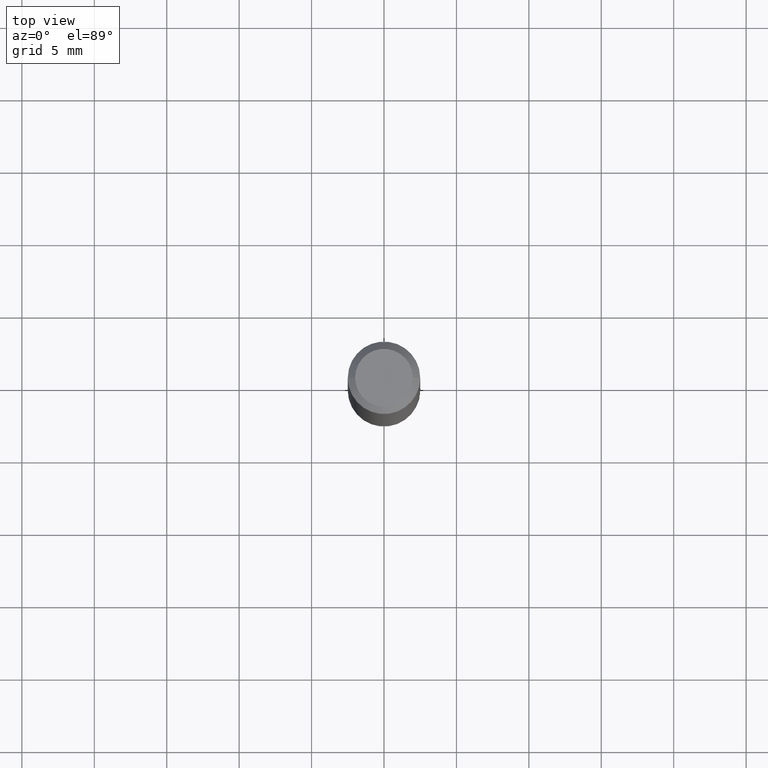
[diagram: clean part render]
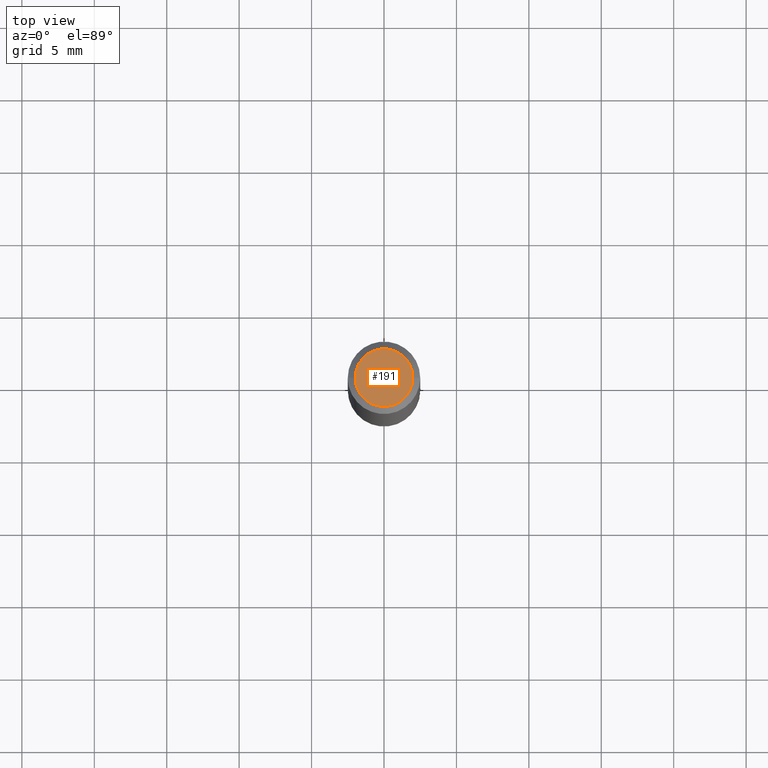
[diagram: same view with one face highlighted and labeled with its STEP entity id]
A machine part, top view. The second image highlights one B-rep face of the part: STEP entity #191.
In plain terms, the highlighted planar face has unit normal (0, -0, -1).
Its self-contained STEP definition (entity closure, byte-faithful):
#3 = EDGE_CURVE ( 'NONE', #301, #77, #68, .T. ) ;
#6 = AXIS2_PLACEMENT_3D ( 'NONE', #233, #208, #339 ) ;
#43 = CARTESIAN_POINT ( 'NONE',  ( 0.07844999999999981155, -6.417258612913221441E-16, 4.159044147803931210E-30 ) ) ;
#45 = FACE_OUTER_BOUND ( 'NONE', #207, .T. ) ;
#50 = CARTESIAN_POINT ( 'NONE',  ( 0.000000000000000000, 0.000000000000000000, 0.000000000000000000 ) ) ;
#68 = CIRCLE ( 'NONE', #6, 0.07844999999999981155 ) ;
#77 = VERTEX_POINT ( 'NONE', #86 ) ;
#86 = CARTESIAN_POINT ( 'NONE',  ( -0.07844999999999981155, 5.827282354529173170E-16, -3.953055038153090764E-30 ) ) ;
#128 = PLANE ( 'NONE',  #290 ) ;
#165 = CARTESIAN_POINT ( 'NONE',  ( 5.478134220644862595E-16, 0.07844999999999981155, -2.739067110322441158E-16 ) ) ;
#176 = EDGE_CURVE ( 'NONE', #77, #301, #184, .T. ) ;
#184 = CIRCLE ( 'NONE', #236, 0.07844999999999981155 ) ;
#191 = ADVANCED_FACE ( 'NONE', ( #45 ), #128, .F. ) ;
#207 = EDGE_LOOP ( 'NONE', ( #344, #310 ) ) ;
#208 = DIRECTION ( 'NONE',  ( -2.445468806185136597E-29, 3.491481338843145583E-15, 1.000000000000000000 ) ) ;
#233 = CARTESIAN_POINT ( 'NONE',  ( 0.000000000000000000, 0.000000000000000000, 0.000000000000000000 ) ) ;
#236 = AXIS2_PLACEMENT_3D ( 'NONE', #50, #325, #326 ) ;
#284 = DIRECTION ( 'NONE',  ( -1.000000000000000000, 6.982962677686265922E-15, -4.876176775795935793E-29 ) ) ;
#290 = AXIS2_PLACEMENT_3D ( 'NONE', #165, #303, #284 ) ;
#301 = VERTEX_POINT ( 'NONE', #43 ) ;
#303 = DIRECTION ( 'NONE',  ( 2.438088387897960049E-29, -3.491481338843145188E-15, -1.000000000000000000 ) ) ;
#310 = ORIENTED_EDGE ( 'NONE', *, *, #3, .T. ) ;
#325 = DIRECTION ( 'NONE',  ( -2.445468806185136597E-29, 3.491481338843145583E-15, 1.000000000000000000 ) ) ;
#326 = DIRECTION ( 'NONE',  ( 1.000000000000000000, -6.982962677686265922E-15, 4.876176775795935793E-29 ) ) ;
#339 = DIRECTION ( 'NONE',  ( 1.000000000000000000, -6.982962677686265922E-15, 4.876176775795935793E-29 ) ) ;
#344 = ORIENTED_EDGE ( 'NONE', *, *, #176, .T. ) ;